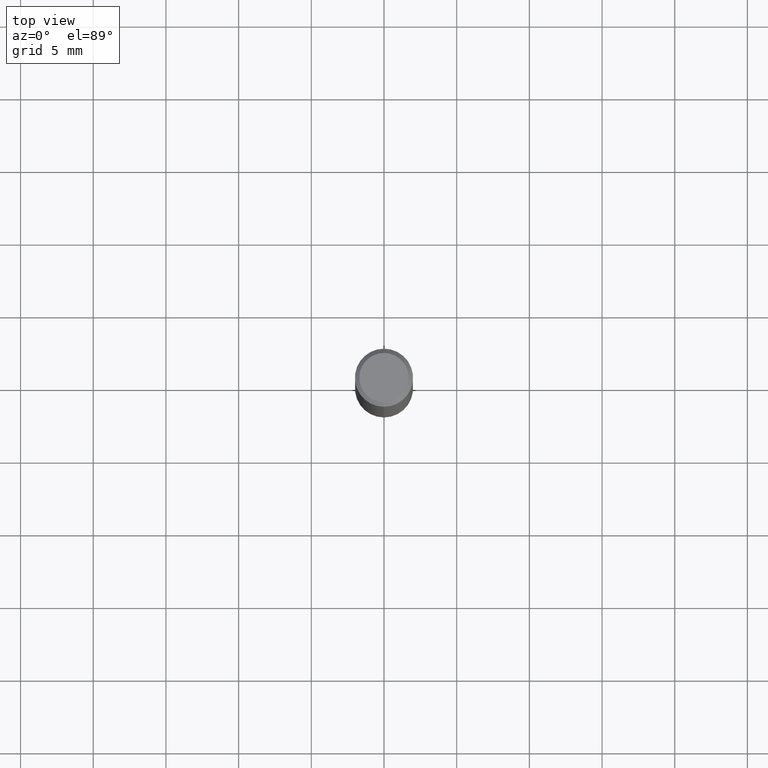
[diagram: clean part render]
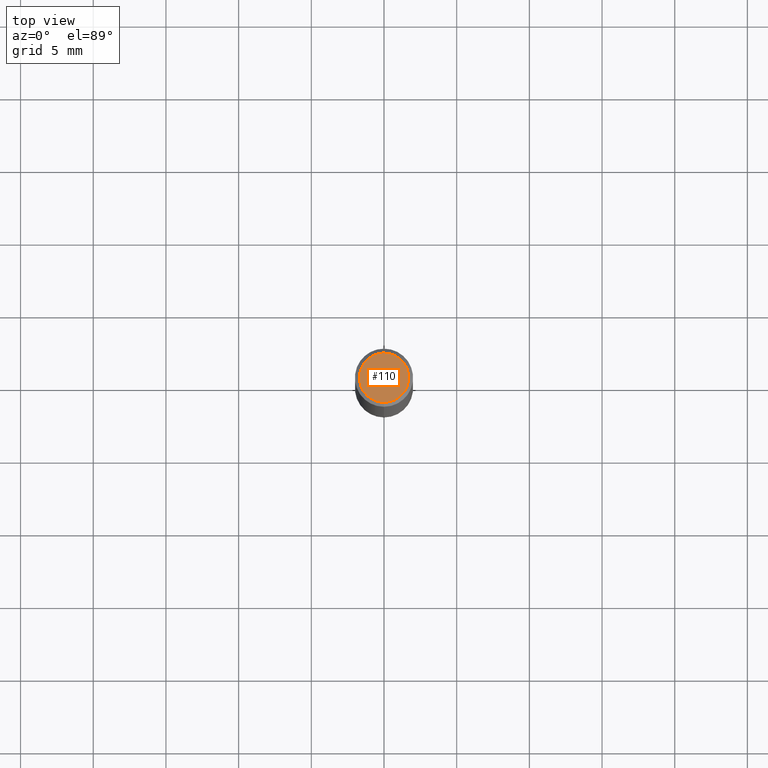
[diagram: same view with one face highlighted and labeled with its STEP entity id]
A machine part, top view. The second image highlights one B-rep face of the part: STEP entity #110.
In plain terms, the highlighted planar face has unit normal (-0, 0, 1).
Its self-contained STEP definition (entity closure, byte-faithful):
#110=ADVANCED_FACE('',(#236),#237,.T.);
#112=EDGE_CURVE('',#124,#182,#239,.T.);
#118=EDGE_CURVE('',#182,#124,#245,.T.);
#124=VERTEX_POINT('',#251);
#182=VERTEX_POINT('',#317);
#236=FACE_OUTER_BOUND('',#367,.T.);
#237=PLANE('',#368);
#239=CIRCLE('',#371,1.7);
#245=CIRCLE('',#380,1.7);
#251=CARTESIAN_POINT('',(0.0,1.7,0.0));
#317=CARTESIAN_POINT('',(2.08183080149804E-016,-1.7,0.0));
#367=EDGE_LOOP('',(#519,#520));
#368=AXIS2_PLACEMENT_3D('',#521,#522,#523);
#371=AXIS2_PLACEMENT_3D('',#524,#525,#526);
#380=AXIS2_PLACEMENT_3D('',#528,#529,#530);
#519=ORIENTED_EDGE('',*,*,#112,.F.);
#520=ORIENTED_EDGE('',*,*,#118,.F.);
#521=CARTESIAN_POINT('',(0.0,0.85,0.0));
#522=DIRECTION('',(-0.0,0.0,1.0));
#523=DIRECTION('',(0.0,-1.0,0.0));
#524=CARTESIAN_POINT('',(0.0,0.0,0.0));
#525=DIRECTION('',(0.0,0.0,-1.0));
#526=DIRECTION('',(0.0,1.0,0.0));
#528=CARTESIAN_POINT('',(0.0,0.0,0.0));
#529=DIRECTION('',(0.0,0.0,-1.0));
#530=DIRECTION('',(0.0,1.0,0.0));